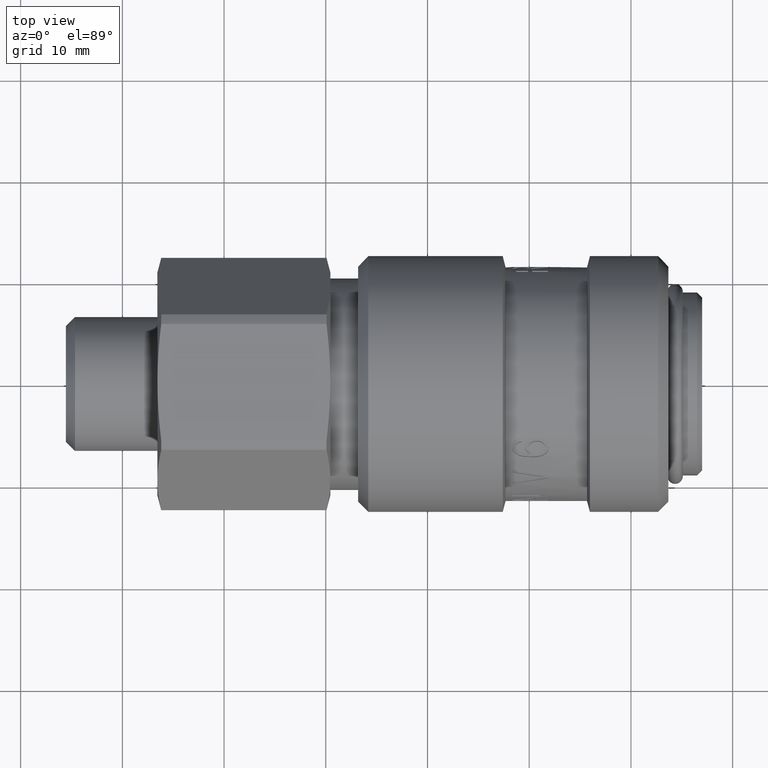
[diagram: clean part render]
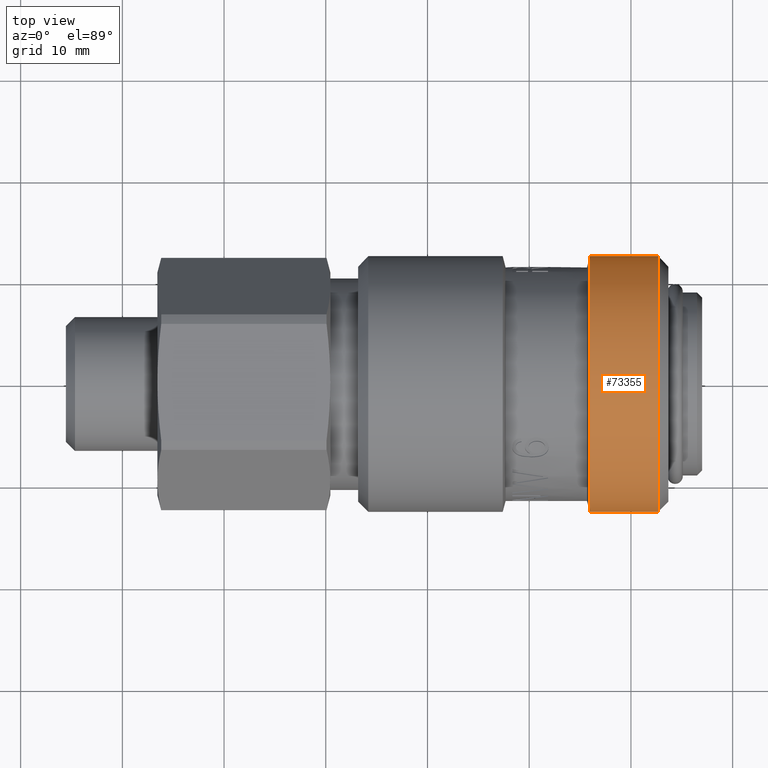
[diagram: same view with one face highlighted and labeled with its STEP entity id]
A machine part, top view. The second image highlights one B-rep face of the part: STEP entity #73355.
In plain terms, the highlighted cylindrical surface (bore or boss wall) has radius 12.575 mm, axis along (1, 0, 0).
Its self-contained STEP definition (entity closure, byte-faithful):
#73313=CARTESIAN_POINT('',(32.680999999999997,-12.575000000000001,-1.539993E-015));
#73314=VERTEX_POINT('',#73313);
#73315=CARTESIAN_POINT('',(32.680999999999990,4.393509E-015,0.0));
#73316=DIRECTION('',(1.0,0.0,0.0));
#73317=DIRECTION('',(0.0,1.0,0.0));
#73318=AXIS2_PLACEMENT_3D('',#73315,#73316,#73317);
#73319=CIRCLE('',#73318,12.575000000000005);
#73320=EDGE_CURVE('',#73314,#73314,#73319,.T.);
#73336=CARTESIAN_POINT('',(29.825022690931725,4.005876E-015,0.0));
#73337=DIRECTION('',(1.0,1.357271E-016,0.0));
#73338=DIRECTION('',(0.0,-1.0,0.0));
#73339=AXIS2_PLACEMENT_3D('',#73336,#73337,#73338);
#73340=CYLINDRICAL_SURFACE('',#73339,12.575000000000005);
#73341=CARTESIAN_POINT('',(25.969045381863456,-12.575000000000001,0.0));
#73342=VERTEX_POINT('',#73341);
#73343=CARTESIAN_POINT('',(25.969045381863452,3.482515E-015,0.0));
#73344=DIRECTION('',(1.0,0.0,0.0));
#73345=DIRECTION('',(0.0,-1.0,0.0));
#73346=AXIS2_PLACEMENT_3D('',#73343,#73344,#73345);
#73347=CIRCLE('',#73346,12.575000000000005);
#73348=EDGE_CURVE('',#73342,#73342,#73347,.T.);
#73349=ORIENTED_EDGE('',*,*,#73348,.T.);
#73350=EDGE_LOOP('',(#73349));
#73351=FACE_OUTER_BOUND('',#73350,.T.);
#73352=ORIENTED_EDGE('',*,*,#73320,.F.);
#73353=EDGE_LOOP('',(#73352));
#73354=FACE_BOUND('',#73353,.T.);
#73355=ADVANCED_FACE('',(#73351,#73354),#73340,.T.);